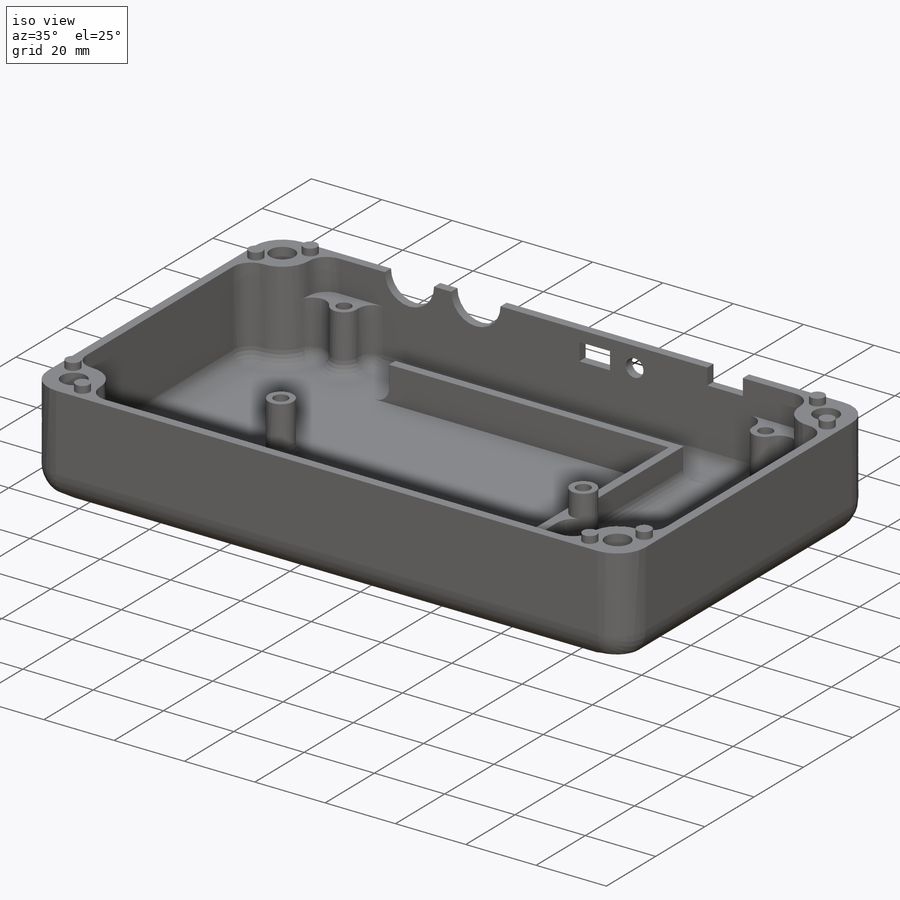
[diagram: iso view]
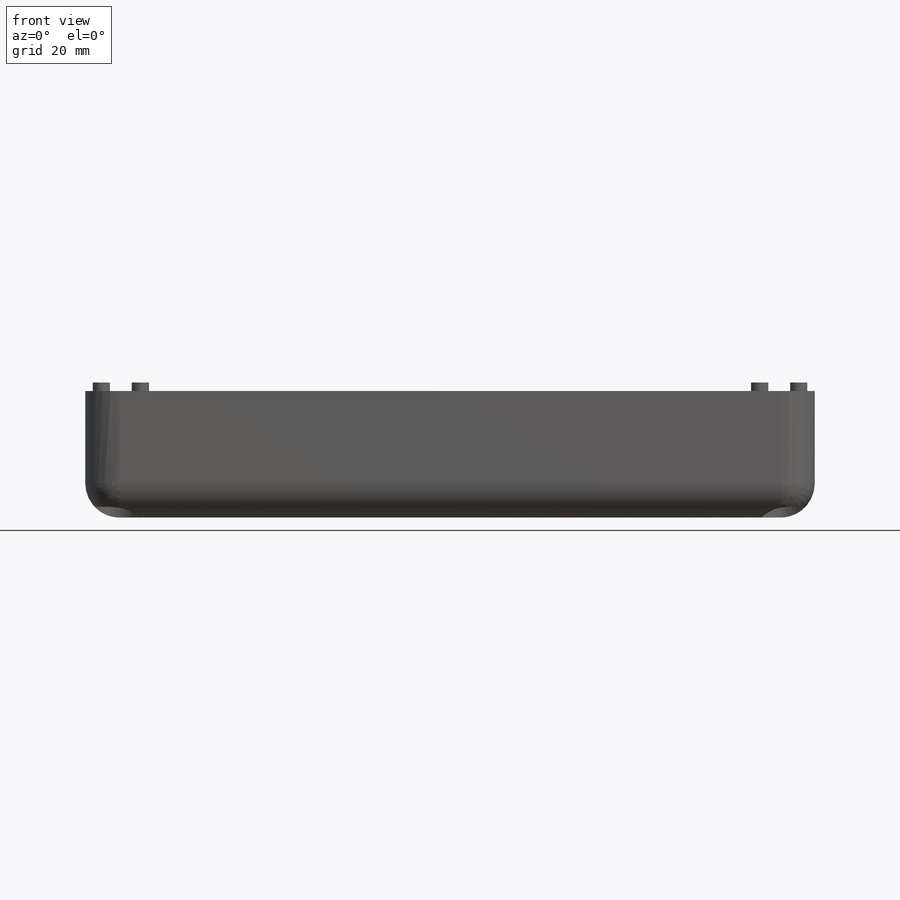
[diagram: front view]
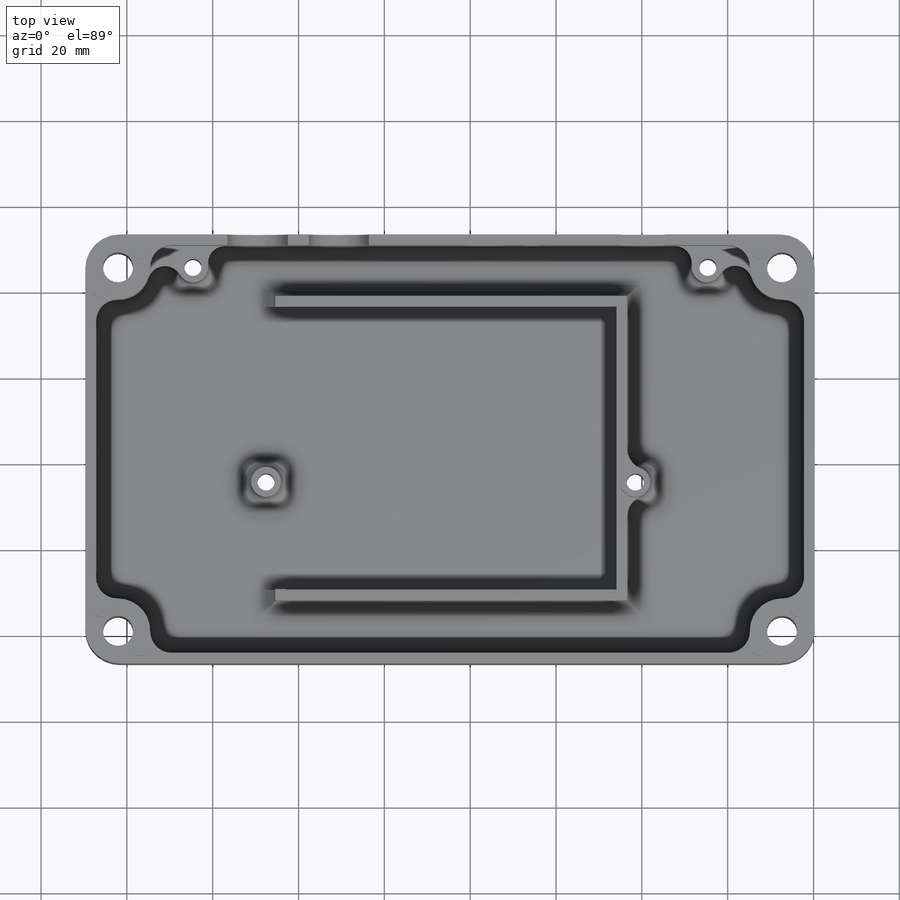
[diagram: top view]
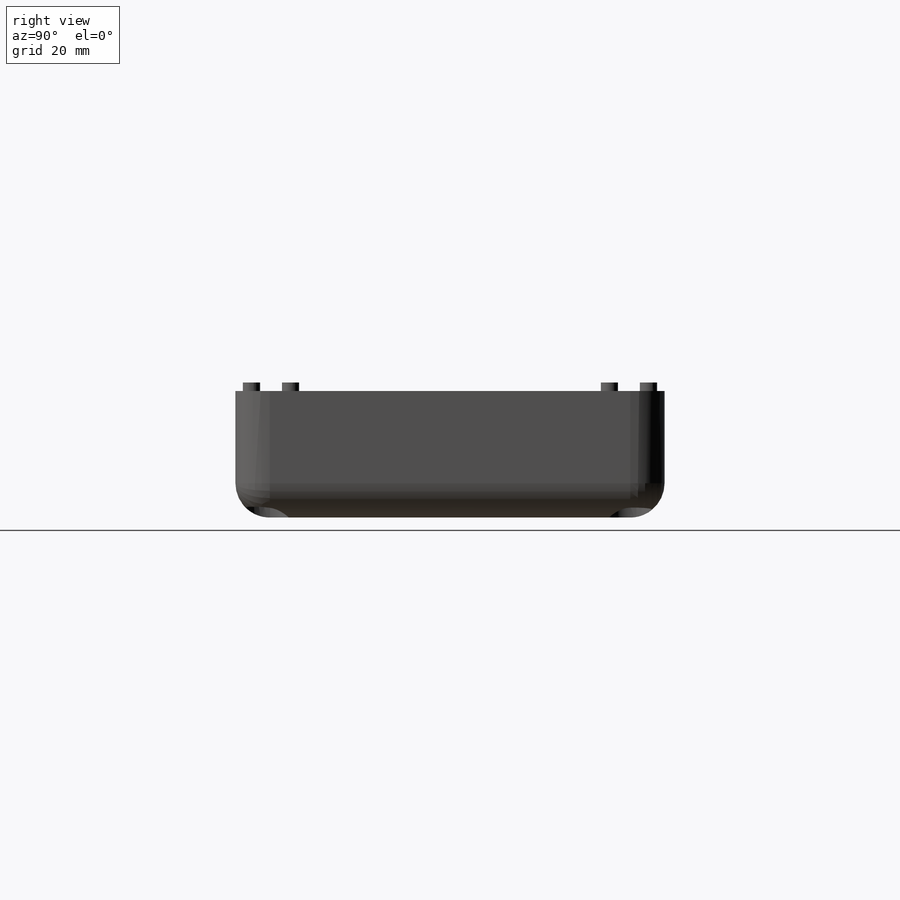
[diagram: right view]
SOLIDWORKS PART (.sldprt)
format: sldprt  version: not decoded by parser v0  size: 1,401,856 bytes
history: native  units: mm
features: sketch x29, cut_extrude x15, extrude x14, fillet x7, material x1 (+16 scaffold rows collapsed)
feature tree (82):
  scaffold x16  (default folders/planes/origin — collapsed)
  material  "Material <not specified>"
  sketch  "Sketch4"  dims[D1=170.0mm]
  extrude  "Boss-Extrude2"  Depth=41mm
  fillet  "Fillet2"  Radius=8.001mm
  fillet  "Fillet3"  Radius=8.001mm
  fillet  "Fillet4"  Radius=8.001mm
  sketch  "Sketch15"  dims[c1.D1=5.0mm c1.D2=5.0mm c1.D3=5.0mm c1.D4=5.0mm c1.D5=5.0mm c1.D6=5.0mm c1.D7=5.0mm c1.D8=5.0mm c1.D16=7.0mm c1.D17=7.0mm c1.D18=7.0mm c1.D19=7.0mm c1.D20=7.5mm c1.D21=7.5mm c1.D22=7.5mm c2.D1=~2.343439mm c2.D9=2.5mm c2.D10=2.5mm c2.D11=2.5mm c2.D12=2.5mm c2.D13=77.0mm c2.D14=66.0mm c2.D16=~41.795106mm c2.D20=7.5mm c2.D21=7.5mm c2.D22=7.5mm c2.D23=7.5mm c2.D24=5.303mm c2.D25=~5.303602mm c2.D26=5.303mm c2.D27=~5.303602mm c2.D28=5.303mm c2.D29=~5.303602mm c2.D30=5.303mm c2.D31=~5.303602mm c2.D32=7.5mm c2.D33=~7.499996mm c2.D34=7.5mm c2.D35=~7.500004mm c2.D36=7.5mm c2.D37=~7.499996mm c2.D38=7.5mm c2.D39=~7.500004mm c2.D15=2.5mm]
  cut_extrude  "Cut-Extrude4"  Depth=27mm
  cut_extrude  "Cut-Extrude5"  [1 undecoded]
  sketch  "Sketch15<21>"  dims[D1=37.0mm]
  cut_extrude  "Cut-Extrude6"  [1 undecoded]
  sketch  "Sketch15<22>"  dims[D1=41.0mm]
  cut_extrude  "Cut-Extrude7"  [1 undecoded]
  sketch  "Sketch15<23>"  dims[D1=41.0mm]
  cut_extrude  "Cut-Extrude8"  [1 undecoded]
  sketch  "Sketch15<24>"  dims[D1=41.0mm]
  cut_extrude  "Cut-Extrude9"  [1 undecoded]
  sketch  "Sketch15<25>"  dims[D1=41.0mm]
  cut_extrude  "Cut-Extrude10"  [1 undecoded]
  sketch  "Sketch15<26>"  dims[D1=37.0mm]
  fillet  "Fillet6"  Radius=4mm
  sketch  "Sketch21"
  cut_extrude  "Cut-Extrude11"  Depth=37mm
  sketch  "Sketch24"  dims[D1=~2.191836mm]
  extrude  "Boss-Extrude6"  Depth=16.5mm
  sketch  "Sketch25"  dims[D1=~4.29657mm]
  extrude  "Boss-Extrude7"  Depth=16.5mm
  sketch  "Sketch28"  dims[D1=~1.581539mm]
  extrude  "Boss-Extrude9"  Depth=57.145232mm
  sketch  "Sketch29"  dims[D1=~2.503964mm]
  extrude  "Boss-Extrude10"  Depth=42.95895mm
  sketch  "Sketch31"  dims[D1=6.5mm]
  extrude  "Boss-Extrude12"  Depth=4.592494mm
  sketch  "Sketch34"  dims[D1=6.5mm]
  extrude  "Boss-Extrude13"  Depth=8.660171mm
  sketch  "Sketch36"  dims[D1=3.95mm]
  extrude  "Boss-Extrude14"  Depth=6.087715mm
  sketch  "Sketch37"
  extrude  "Boss-Extrude15"  Depth=29.049797mm
  fillet  "Fillet7"  Radius=5mm
  fillet  "Fillet8"  Radius=5mm
  sketch  "Sketch39"
  cut_extrude  "Cut-Extrude13"  Depth=11.53mm
  sketch  "Sketch40"  dims[c1.D1=~7.212755mm c1.D3=~5.825823mm c1.D5=~5.83208mm c1.D7=~5.134587mm c2.D1=3.75mm c2.D2=3.75mm c2.D3=3.75mm c2.D4=3.75mm c2.D5=3.75mm c2.D6=3.75mm c2.D7=3.75mm c2.D8=3.75mm]
  cut_extrude  "Cut-Extrude14"  Depth=2.5mm
  sketch  "Sketch42"
  extrude  "Boss-Extrude18"  Depth=10mm
  sketch  "Sketch44"  dims[D1=~3.498602mm]
  cut_extrude  "Cut-Extrude16"  Depth=16.5mm
  sketch  "Sketch47"  dims[D1=3.5mm D2=3.75mm D3=3.5mm D4=3.75mm]
  extrude  "Boss-Extrude24"  Depth=30.314057mm
  sketch  "Sketch48"
  extrude  "Boss-Extrude25"  Depth=16.5mm
  sketch  "Sketch49"  dims[D1=~3.501812mm]
  cut_extrude  "Cut-Extrude17"  Depth=16.5mm
  sketch  "Sketch50"  dims[D3=~1.473098mm D1=3.5mm D2=3.5mm]
  extrude  "Boss-Extrude27"  Depth=20mm
  fillet  "Fillet9"  Radius=4mm
  sketch  "Sketch52"  dims[D1=3.0mm]
  cut_extrude  "Cut-Extrude18"  Depth=2mm
  sketch  "Sketch53"
  cut_extrude  "Cut-Extrude19"  Depth=1mm
  sketch  "Sketch55"  dims[D1=~3.656828mm]
  cut_extrude  "Cut-Extrude20"  Depth=3mm
  sketch  "Sketch56"  dims[c1.D1=~1.994756mm c1.D3=~2.199493mm c1.D5=~2.336798mm c1.D9=~2.434822mm c1.D13=~1.790925mm c2.D1=6.5mm c2.D2=3.75mm c2.D3=6.5mm c2.D4=3.75mm c2.D5=6.5mm c2.D6=3.75mm c2.D7=6.5mm c2.D8=3.75mm c2.D9=6.5mm c2.D10=6.5mm c2.D11=3.75mm c2.D12=3.75mm c2.D13=6.5mm c2.D14=3.75mm c2.D15=6.5mm c2.D16=3.75mm]
  extrude  "Boss-Extrude28"  Depth=2mm
decode coverage: 53 of 65 modeling features carry decoded parameters
note: ~ marks probable driven/reference dimensions
note: 6 parameter values undecoded
summary: no parameter record found for 6 features
note: suppression state not decoded; provenance and decode notes live in map.json
